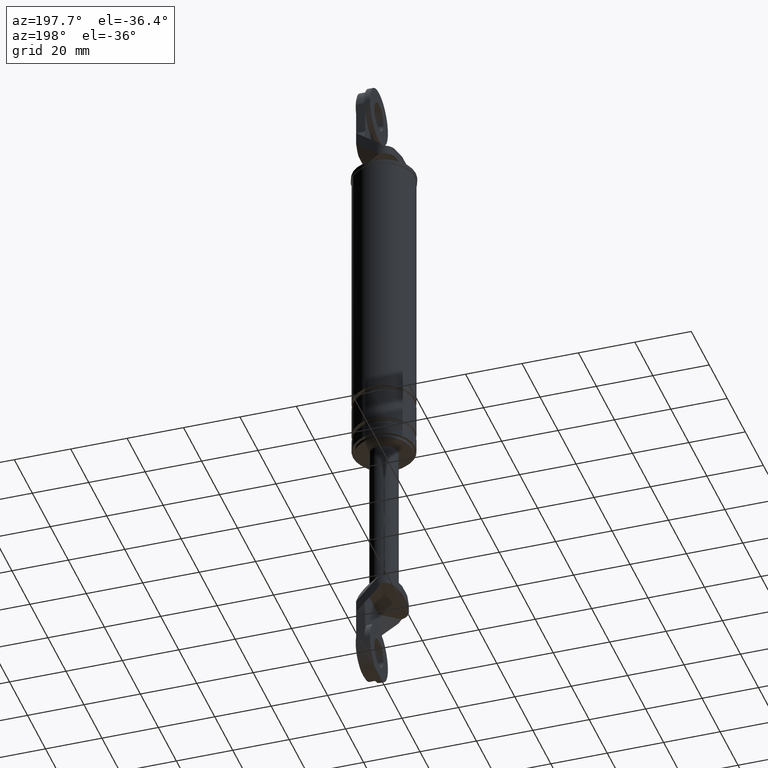
[diagram: clean part render]
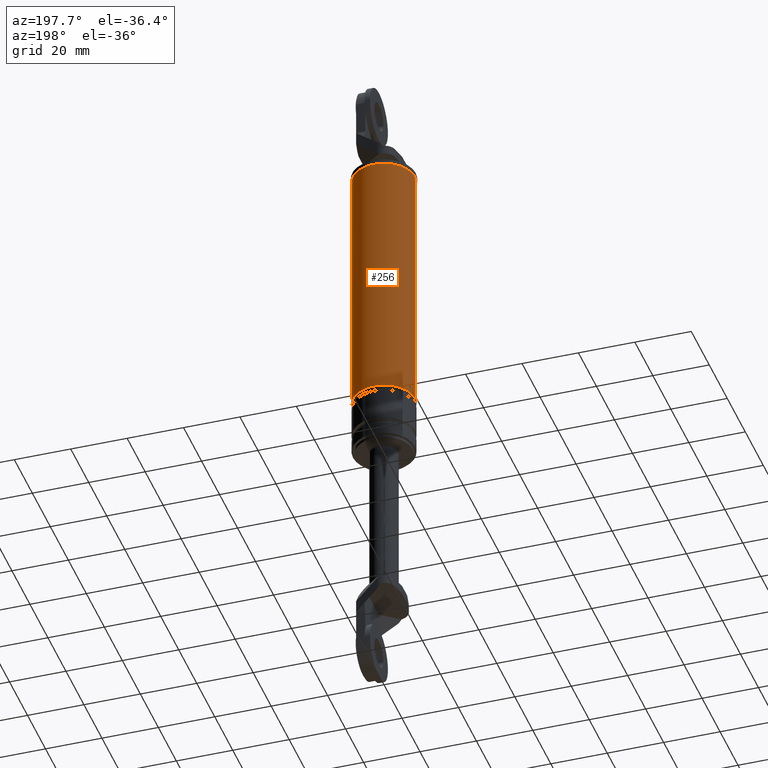
[diagram: same view with one face highlighted and labeled with its STEP entity id]
A machine part, auxiliary view. The second image highlights one B-rep face of the part: STEP entity #256.
In plain terms, the highlighted cylindrical surface (edge-blend (fillet) strip) has radius 11 mm, axis along (0, 0, 1).
Its self-contained STEP definition (entity closure, byte-faithful):
#256=ADVANCED_FACE('',(#817),#816,.T.);
#816=CYLINDRICAL_SURFACE('',#1576,1.10000000000E+001);
#817=FACE_OUTER_BOUND('',#1577,.T.);
#1573=CARTESIAN_POINT('',(0.00000000000E+000,3.58204186421E-014,0.00000000000E+000));
#1574=DIRECTION('',(-0.00000000000E+000,-0.00000000000E+000,1.00000000000E+000));
#1575=DIRECTION('',(1.00000000000E+000,0.00000000000E+000,0.00000000000E+000));
#1576=AXIS2_PLACEMENT_3D('',#1573,#1574,#1575);
#1577=EDGE_LOOP('',(#2022,#2023,#2024,#2025));
#2022=ORIENTED_EDGE('',*,*,#2275,.T.);
#2023=ORIENTED_EDGE('',*,*,#2305,.F.);
#2024=ORIENTED_EDGE('',*,*,#2299,.F.);
#2025=ORIENTED_EDGE('',*,*,#2306,.T.);
#2275=EDGE_CURVE('',#3015,#3014,#3022,.T.);
#2299=EDGE_CURVE('',#3172,#3173,#3174,.T.);
#2305=EDGE_CURVE('',#3173,#3014,#3212,.T.);
#2306=EDGE_CURVE('',#3172,#3015,#3218,.T.);
#3014=VERTEX_POINT('',#4110);
#3015=VERTEX_POINT('',#4111);
#3022=CIRCLE('',#4119,1.10000000000E+001);
#3172=VERTEX_POINT('',#4197);
#3173=VERTEX_POINT('',#4198);
#3174=CIRCLE('',#4202,1.10000000000E+001);
#3212=(BOUNDED_CURVE() B_SPLINE_CURVE(1,(#4227,#4228),.UNSPECIFIED.,.F.,.F.) B_SPLINE_CURVE_WITH_KNOTS((2,2),(8.33333332085E-002,9.16666666563E-001),.UNSPECIFIED.) CURVE() GEOMETRIC_REPRESENTATION_ITEM() RATIONAL_B_SPLINE_CURVE((1.00000000000E+000,1.00000000000E+000)) REPRESENTATION_ITEM('') );
#3218=(BOUNDED_CURVE() B_SPLINE_CURVE(1,(#4229,#4230),.UNSPECIFIED.,.F.,.F.) B_SPLINE_CURVE_WITH_KNOTS((2,2),(8.33333333333E-002,9.16666666667E-001),.UNSPECIFIED.) CURVE() GEOMETRIC_REPRESENTATION_ITEM() RATIONAL_B_SPLINE_CURVE((7.50000000000E-001,7.50000000000E-001)) REPRESENTATION_ITEM('') );
#4110=CARTESIAN_POINT('',(1.10000000000E+001,3.61192557345E-014,8.49999850000E+001));
#4111=CARTESIAN_POINT('',(-1.10000000000E+001,3.58204186421E-014,8.49999850000E+001));
#4116=CARTESIAN_POINT('',(0.00000000000E+000,3.58204186421E-014,8.49999850000E+001));
#4117=DIRECTION('',(-0.00000000000E+000,0.00000000000E+000,-1.00000000000E+000));
#4118=DIRECTION('',(-1.00000000000E+000,-1.22460635382E-016,0.00000000000E+000));
#4119=AXIS2_PLACEMENT_3D('',#4116,#4117,#4118);
#4197=CARTESIAN_POINT('',(-1.10000000000E+001,3.58204186421E-014,-8.00001500000E+000));
#4198=CARTESIAN_POINT('',(1.10000000000E+001,3.61192557345E-014,-8.00001500000E+000));
#4199=CARTESIAN_POINT('',(0.00000000000E+000,3.58204186421E-014,-8.00001500000E+000));
#4200=DIRECTION('',(-0.00000000000E+000,0.00000000000E+000,-1.00000000000E+000));
#4201=DIRECTION('',(-1.00000000000E+000,-1.22460635382E-016,0.00000000000E+000));
#4202=AXIS2_PLACEMENT_3D('',#4199,#4200,#4201);
#4227=CARTESIAN_POINT('',(1.10000000000E+001,3.58204186421E-014,-8.00001501393E+000));
#4228=CARTESIAN_POINT('',(1.10000000000E+001,3.58204186421E-014,8.49999849884E+001));
#4229=CARTESIAN_POINT('',(-1.10000000000E+001,3.55271367880E-014,-8.00001500000E+000));
#4230=CARTESIAN_POINT('',(-1.10000000000E+001,3.55271367880E-014,8.49999850000E+001));